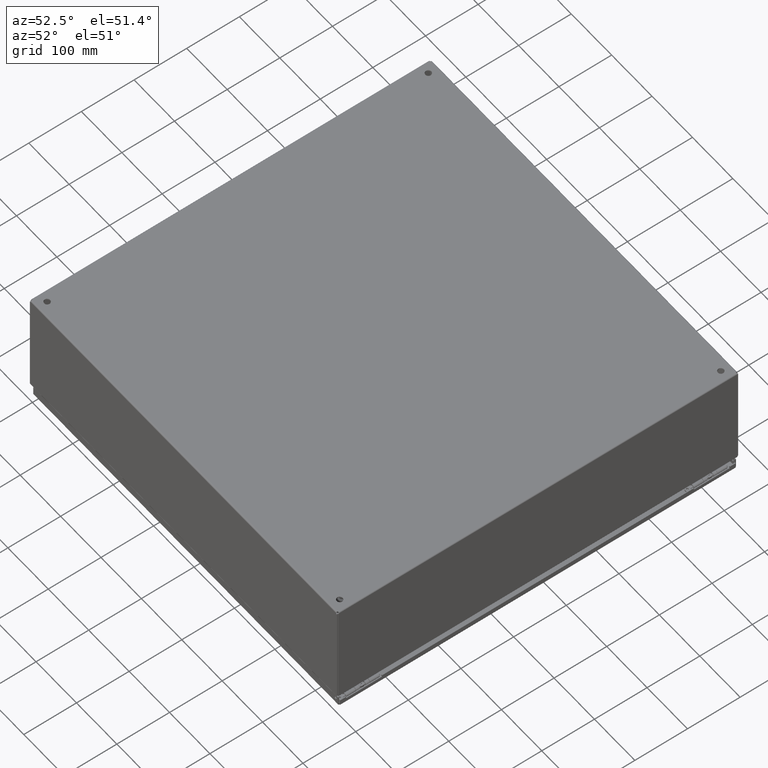
[diagram: clean part render]
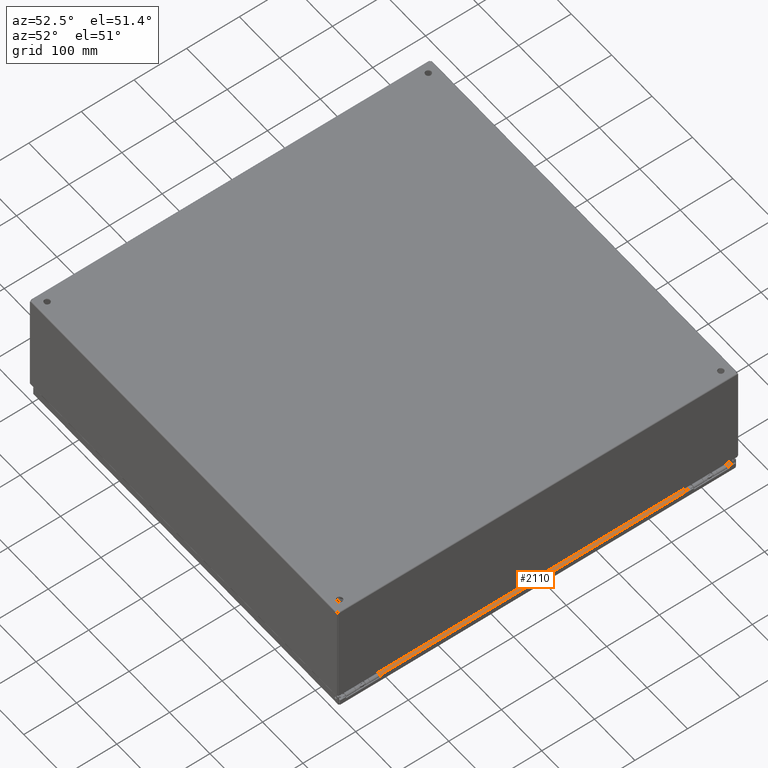
[diagram: same view with one face highlighted and labeled with its STEP entity id]
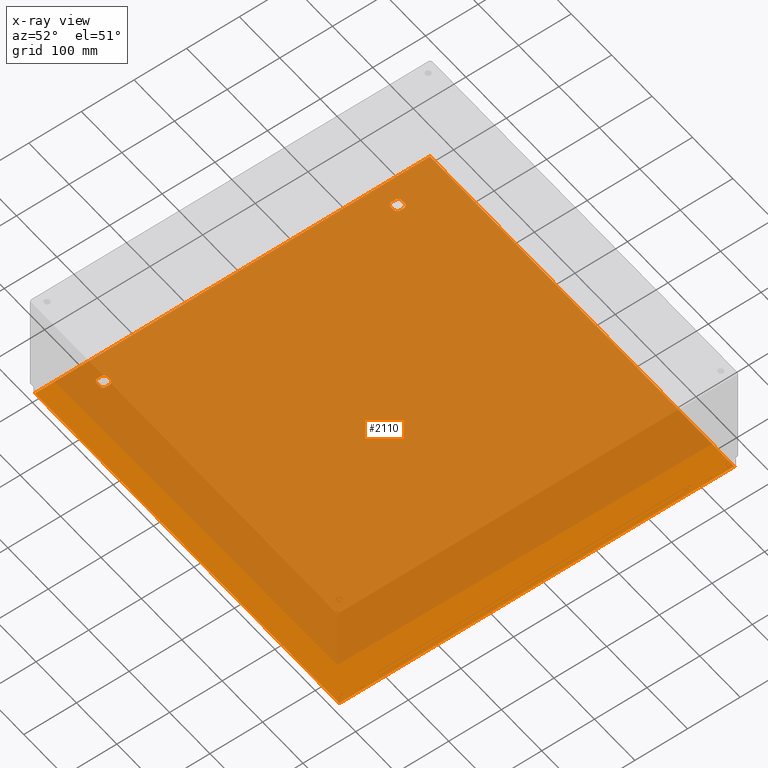
[diagram: x-ray of the same camera — body ghosted, the highlighted face saturated]
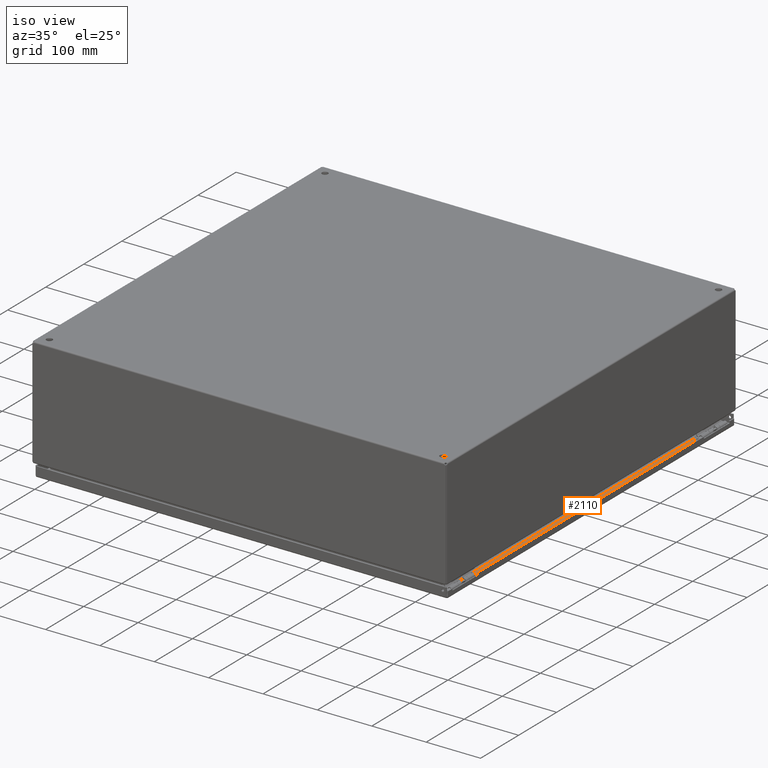
[diagram: same view with one face highlighted and labeled with its STEP entity id]
A machine part, auxiliary view. The second image highlights one B-rep face of the part: STEP entity #2110.
The next image is the same camera in x-ray: the body ghosted, the highlighted face saturated — about 87% of this face is hidden behind the body in this view.
A second angle (iso view) of the same face is appended — the face is thin or edge-on in the first view.
In plain terms, the highlighted planar face has unit normal (0, 0, 1).
Its self-contained STEP definition (entity closure, byte-faithful):
#124=CARTESIAN_POINT('',(2.087624081420722,4.274999999999987,0.074000000000000));
#125=VERTEX_POINT('',#124);
#126=CARTESIAN_POINT('',(2.274999999999991,4.087624081420714,0.074000000000000));
#127=VERTEX_POINT('',#126);
#128=CARTESIAN_POINT('',(1.874999999999996,3.874999999999996,0.074000000000000));
#129=DIRECTION('',(0.0,0.0,-1.000000000000000));
#130=DIRECTION('',(-0.469368833158337,-0.883002207505497,0.0));
#131=AXIS2_PLACEMENT_3D('',#128,#129,#130);
#132=CIRCLE('',#131,0.453000000000000);
#133=EDGE_CURVE('',#125,#127,#132,.T.);
#166=CARTESIAN_POINT('',(2.274999999999991,3.662375918579279,0.074000000000000));
#167=VERTEX_POINT('',#166);
#168=CARTESIAN_POINT('',(2.274999999999989,4.087624081420715,0.074000000000000));
#169=DIRECTION('',(0.0,-1.0,0.0));
#170=VECTOR('',#169,0.425248162841434);
#171=LINE('',#168,#170);
#172=EDGE_CURVE('',#127,#167,#171,.T.);
#197=CARTESIAN_POINT('',(2.087624081420683,3.474999999999985,0.074000000000000));
#198=VERTEX_POINT('',#197);
#199=CARTESIAN_POINT('',(1.874999999999996,3.874999999999996,0.074000000000000));
#200=DIRECTION('',(0.0,0.0,-1.0));
#201=DIRECTION('',(-0.883002207505508,0.469368833158317,0.0));
#202=AXIS2_PLACEMENT_3D('',#199,#200,#201);
#203=CIRCLE('',#202,0.453000000000000);
#204=EDGE_CURVE('',#167,#198,#203,.T.);
#230=CARTESIAN_POINT('',(1.662375918579309,3.474999999999985,0.074000000000000));
#231=VERTEX_POINT('',#230);
#232=CARTESIAN_POINT('',(2.087624081420683,3.474999999999985,0.074000000000000));
#233=DIRECTION('',(-1.0,0.0,0.0));
#234=VECTOR('',#233,0.425248162841375);
#235=LINE('',#232,#234);
#236=EDGE_CURVE('',#198,#231,#235,.T.);
#261=CARTESIAN_POINT('',(1.475000000000001,3.662375918579279,0.074000000000000));
#262=VERTEX_POINT('',#261);
#263=CARTESIAN_POINT('',(1.874999999999996,3.874999999999996,0.074000000000000));
#264=DIRECTION('',(0.0,0.0,-1.000000000000000));
#265=DIRECTION('',(0.469368833158250,0.883002207505544,0.0));
#266=AXIS2_PLACEMENT_3D('',#263,#264,#265);
#267=CIRCLE('',#266,0.453000000000000);
#268=EDGE_CURVE('',#231,#262,#267,.T.);
#294=CARTESIAN_POINT('',(1.475000000000001,4.087624081420714,0.074000000000000));
#295=VERTEX_POINT('',#294);
#296=CARTESIAN_POINT('',(1.475000000000002,3.662375918579279,0.074000000000000));
#297=DIRECTION('',(0.0,1.0,0.0));
#298=VECTOR('',#297,0.425248162841435);
#299=LINE('',#296,#298);
#300=EDGE_CURVE('',#262,#295,#299,.T.);
#325=CARTESIAN_POINT('',(1.662375918579269,4.274999999999987,0.074000000000000));
#326=VERTEX_POINT('',#325);
#327=CARTESIAN_POINT('',(1.874999999999996,3.874999999999996,0.074000000000000));
#328=DIRECTION('',(0.0,0.0,-1.0));
#329=DIRECTION('',(0.883002207505508,-0.469368833158317,0.0));
#330=AXIS2_PLACEMENT_3D('',#327,#328,#329);
#331=CIRCLE('',#330,0.453000000000000);
#332=EDGE_CURVE('',#295,#326,#331,.T.);
#358=CARTESIAN_POINT('',(1.662375918579269,4.274999999999986,0.074000000000000));
#359=DIRECTION('',(1.0,0.0,0.0));
#360=VECTOR('',#359,0.425248162841453);
#361=LINE('',#358,#360);
#362=EDGE_CURVE('',#326,#125,#361,.T.);
#380=CARTESIAN_POINT('',(2.087624081420700,26.274999999999995,0.074000000000000));
#381=VERTEX_POINT('',#380);
#382=CARTESIAN_POINT('',(2.274999999999992,26.087624081420710,0.074000000000000));
#383=VERTEX_POINT('',#382);
#384=CARTESIAN_POINT('',(1.874999999999996,25.874999999999993,0.074000000000000));
#385=DIRECTION('',(0.0,0.0,-1.0));
#386=DIRECTION('',(-0.469368833158288,-0.883002207505523,0.0));
#387=AXIS2_PLACEMENT_3D('',#384,#385,#386);
#388=CIRCLE('',#387,0.453000000000000);
#389=EDGE_CURVE('',#381,#383,#388,.T.);
#422=CARTESIAN_POINT('',(2.274999999999992,25.662375918579279,0.074000000000000));
#423=VERTEX_POINT('',#422);
#424=CARTESIAN_POINT('',(2.274999999999992,26.087624081420707,0.074000000000000));
#425=DIRECTION('',(0.0,-1.0,0.0));
#426=VECTOR('',#425,0.425248162841427);
#427=LINE('',#424,#426);
#428=EDGE_CURVE('',#383,#423,#427,.T.);
#453=CARTESIAN_POINT('',(2.087624081420711,25.474999999999998,0.074000000000000));
#454=VERTEX_POINT('',#453);
#455=CARTESIAN_POINT('',(1.874999999999996,25.874999999999993,0.074000000000000));
#456=DIRECTION('',(0.0,0.0,-1.0));
#457=DIRECTION('',(-0.883002207505511,0.469368833158312,0.0));
#458=AXIS2_PLACEMENT_3D('',#455,#456,#457);
#459=CIRCLE('',#458,0.453000000000000);
#460=EDGE_CURVE('',#423,#454,#459,.T.);
#486=CARTESIAN_POINT('',(1.662375918579281,25.474999999999998,0.074000000000000));
#487=VERTEX_POINT('',#486);
#488=CARTESIAN_POINT('',(2.087624081420710,25.474999999999998,0.074000000000000));
#489=DIRECTION('',(-1.0,0.0,0.0));
#490=VECTOR('',#489,0.425248162841430);
#491=LINE('',#488,#490);
#492=EDGE_CURVE('',#454,#487,#491,.T.);
#517=CARTESIAN_POINT('',(1.474999999999992,25.662375918579290,0.074000000000000));
#518=VERTEX_POINT('',#517);
#519=CARTESIAN_POINT('',(1.874999999999996,25.874999999999993,0.074000000000000));
#520=DIRECTION('',(0.0,0.0,-1.0));
#521=DIRECTION('',(0.469368833158311,0.883002207505511,0.0));
#522=AXIS2_PLACEMENT_3D('',#519,#520,#521);
#523=CIRCLE('',#522,0.453000000000000);
#524=EDGE_CURVE('',#487,#518,#523,.T.);
#550=CARTESIAN_POINT('',(1.474999999999992,26.087624081420699,0.074000000000000));
#551=VERTEX_POINT('',#550);
#552=CARTESIAN_POINT('',(1.474999999999991,25.662375918579290,0.074000000000000));
#553=DIRECTION('',(0.0,1.0,0.0));
#554=VECTOR('',#553,0.425248162841410);
#555=LINE('',#552,#554);
#556=EDGE_CURVE('',#518,#551,#555,.T.);
#581=CARTESIAN_POINT('',(1.662375918579291,26.274999999999995,0.074000000000000));
#582=VERTEX_POINT('',#581);
#583=CARTESIAN_POINT('',(1.874999999999996,25.874999999999993,0.074000000000000));
#584=DIRECTION('',(0.0,0.0,-1.0));
#585=DIRECTION('',(0.883002207505524,-0.469368833158286,0.0));
#586=AXIS2_PLACEMENT_3D('',#583,#584,#585);
#587=CIRCLE('',#586,0.453000000000000);
#588=EDGE_CURVE('',#551,#582,#587,.T.);
#614=CARTESIAN_POINT('',(1.662375918579293,26.274999999999995,0.074000000000000));
#615=DIRECTION('',(1.0,0.0,0.0));
#616=VECTOR('',#615,0.425248162841408);
#617=LINE('',#614,#616);
#618=EDGE_CURVE('',#582,#381,#617,.T.);
#1148=CARTESIAN_POINT('',(29.769749999999998,29.644750000000013,0.074000000000000));
#1149=VERTEX_POINT('',#1148);
#1193=CARTESIAN_POINT('',(29.769750000000002,0.105250000000001,0.074000000000000));
#1194=VERTEX_POINT('',#1193);
#1221=CARTESIAN_POINT('',(29.769749999999991,0.105250000000002,0.074000000000000));
#1222=DIRECTION('',(0.0,1.0,0.0));
#1223=VECTOR('',#1222,29.539500000000011);
#1224=LINE('',#1221,#1223);
#1225=EDGE_CURVE('',#1194,#1149,#1224,.T.);
#1414=CARTESIAN_POINT('',(0.105250000000006,0.105250000000007,0.074000000000000));
#1415=VERTEX_POINT('',#1414);
#1498=CARTESIAN_POINT('',(0.105250000000005,0.105250000000001,0.074000000000000));
#1499=DIRECTION('',(1.0,0.0,0.0));
#1500=VECTOR('',#1499,29.664499999999997);
#1501=LINE('',#1498,#1500);
#1502=EDGE_CURVE('',#1415,#1194,#1501,.T.);
#1688=CARTESIAN_POINT('',(0.105249999999987,29.644750000000013,0.074000000000000));
#1689=VERTEX_POINT('',#1688);
#1769=CARTESIAN_POINT('',(0.105249999999997,29.644750000000009,0.074000000000000));
#1770=DIRECTION('',(0.0,-1.0,0.0));
#1771=VECTOR('',#1770,29.539500000000004);
#1772=LINE('',#1769,#1771);
#1773=EDGE_CURVE('',#1689,#1415,#1772,.T.);
#2037=CARTESIAN_POINT('',(29.769749999999998,29.644750000000013,0.074000000000000));
#2038=DIRECTION('',(-1.0,0.0,0.0));
#2039=VECTOR('',#2038,29.664500000000011);
#2040=LINE('',#2037,#2039);
#2041=EDGE_CURVE('',#1149,#1689,#2040,.T.);
#2079=CARTESIAN_POINT('',(14.937499999999996,14.875000000000005,0.074000000000000));
#2080=DIRECTION('',(0.0,0.0,1.0));
#2081=DIRECTION('',(1.0,0.0,0.0));
#2082=AXIS2_PLACEMENT_3D('',#2079,#2080,#2081);
#2083=PLANE('',#2082);
#2084=ORIENTED_EDGE('',*,*,#1225,.T.);
#2085=ORIENTED_EDGE('',*,*,#2041,.T.);
#2086=ORIENTED_EDGE('',*,*,#1773,.T.);
#2087=ORIENTED_EDGE('',*,*,#1502,.T.);
#2088=EDGE_LOOP('',(#2084,#2085,#2086,#2087));
#2089=FACE_OUTER_BOUND('',#2088,.T.);
#2090=ORIENTED_EDGE('',*,*,#133,.T.);
#2091=ORIENTED_EDGE('',*,*,#172,.T.);
#2092=ORIENTED_EDGE('',*,*,#204,.T.);
#2093=ORIENTED_EDGE('',*,*,#236,.T.);
#2094=ORIENTED_EDGE('',*,*,#268,.T.);
#2095=ORIENTED_EDGE('',*,*,#300,.T.);
#2096=ORIENTED_EDGE('',*,*,#332,.T.);
#2097=ORIENTED_EDGE('',*,*,#362,.T.);
#2098=EDGE_LOOP('',(#2090,#2091,#2092,#2093,#2094,#2095,#2096,#2097));
#2099=FACE_BOUND('',#2098,.T.);
#2100=ORIENTED_EDGE('',*,*,#389,.T.);
#2101=ORIENTED_EDGE('',*,*,#428,.T.);
#2102=ORIENTED_EDGE('',*,*,#460,.T.);
#2103=ORIENTED_EDGE('',*,*,#492,.T.);
#2104=ORIENTED_EDGE('',*,*,#524,.T.);
#2105=ORIENTED_EDGE('',*,*,#556,.T.);
#2106=ORIENTED_EDGE('',*,*,#588,.T.);
#2107=ORIENTED_EDGE('',*,*,#618,.T.);
#2108=EDGE_LOOP('',(#2100,#2101,#2102,#2103,#2104,#2105,#2106,#2107));
#2109=FACE_BOUND('',#2108,.T.);
#2110=ADVANCED_FACE('',(#2089,#2099,#2109),#2083,.T.);